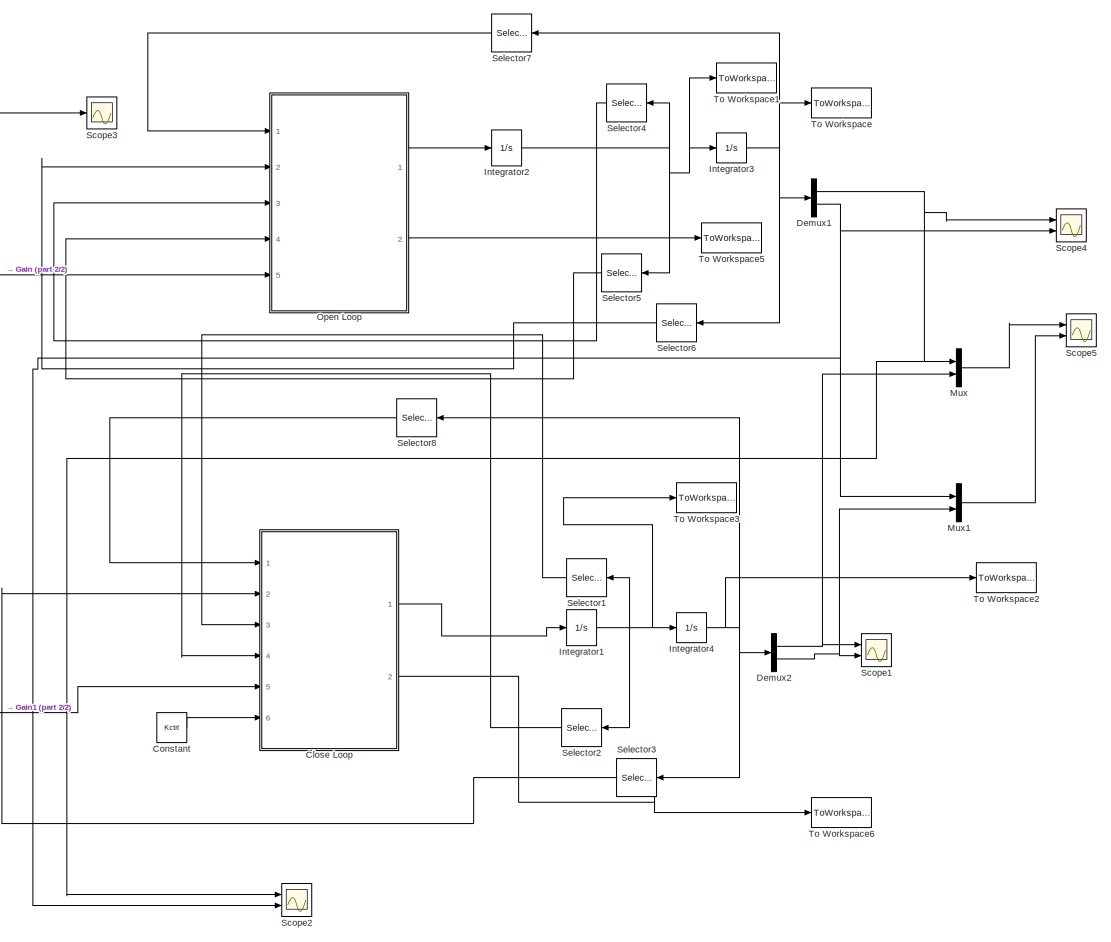
[diagram: root canvas - part 1/2, most of the canvas]
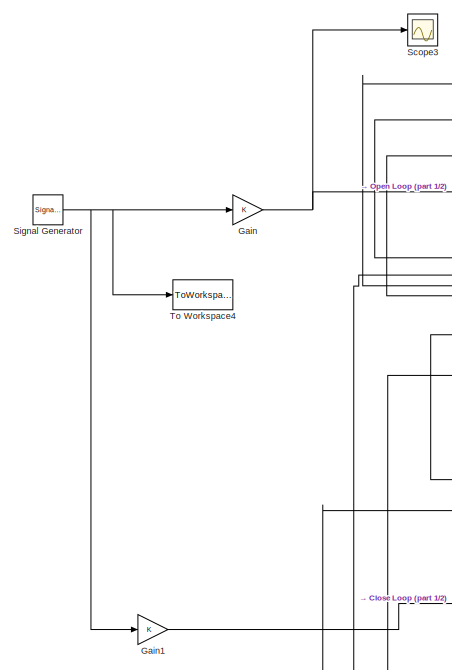
[diagram: root canvas - part 2/2, middle left region]
MODEL slx_be6ae5944928
KIND model
CONFIG AbsTol = auto
CONFIG EnableMultiTasking = off
CONFIG FixedStep = auto
CONFIG InitFcn = init
CONFIG MaxStep = auto
CONFIG MinStep = auto
CONFIG RelTol = 1e-3
CONFIG SampleTimeConstraint = Unconstrained
CONFIG Solver = ode23s
CONFIG SolverName = ode23s
CONFIG StartTime = 0.0
CONFIG StopTime = 1
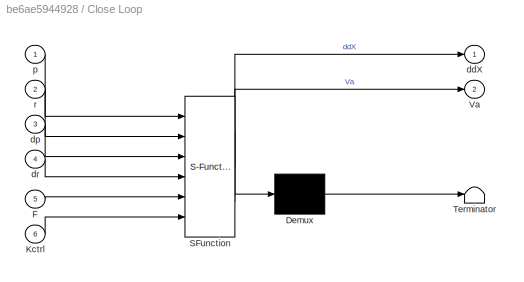
BLOCK [SubSystem] Close Loop
  ErrorFcn = Stateflow.Translate.translate
  PermitHierarchicalResolution = ExplicitOnly
  Ports = [6, 2]
  RequestExecContextInheritance = off
  SFBlockType = MATLAB Function
  TreatAsAtomicUnit = on
  Variant = off
BLOCK [Demux] Close Loop/ Demux 
  Outputs = 1
  Ports = [1, 1]
BLOCK [S-Function] Close Loop/ SFunction 
  EnableBusSupport = on
  FunctionName = sf_sfun
  PortCounts = [6 3]
  Ports = [6, 3]
  SFcnIsStateOwnerBlock = off
  SFunctionDeploymentMode = off
  Tag = Stateflow S-Function Model_1 2
BLOCK [Terminator] Close Loop/ Terminator 
BLOCK [Inport] Close Loop/F
  IconDisplay = Port number
  Port = 5
BLOCK [Inport] Close Loop/Kctrl
  IconDisplay = Port number
  Port = 6
BLOCK [Outport] Close Loop/Va
  IconDisplay = Port number
  Port = 2
BLOCK [Outport] Close Loop/ddX
  IconDisplay = Port number
BLOCK [Inport] Close Loop/dp
  IconDisplay = Port number
  Port = 3
BLOCK [Inport] Close Loop/dr
  IconDisplay = Port number
  Port = 4
BLOCK [Inport] Close Loop/p
  IconDisplay = Port number
BLOCK [Inport] Close Loop/r
  IconDisplay = Port number
  Port = 2
BLOCK [Constant] Constant
  Value = Kctrl
BLOCK [Demux] Demux1
  DisplayOption = bar
  Outputs = 2
  Ports = [1, 2]
BLOCK [Demux] Demux2
  DisplayOption = bar
  Outputs = 2
  Ports = [1, 2]
BLOCK [Gain] Gain
  OutDataTypeStr = Inherit: Inherit via internal rule
  ParamDataTypeStr = Inherit: Inherit via internal rule
  SaturateOnIntegerOverflow = off
BLOCK [Gain] Gain1
  OutDataTypeStr = Inherit: Inherit via internal rule
  ParamDataTypeStr = Inherit: Inherit via internal rule
  SaturateOnIntegerOverflow = off
BLOCK [Integrator] Integrator1
  InitialCondition = [0;0]
  Ports = [1, 1]
BLOCK [Integrator] Integrator2
  InitialCondition = [0;0]
  Ports = [1, 1]
BLOCK [Integrator] Integrator3
  InitialCondition = [0;0]
  Ports = [1, 1]
BLOCK [Integrator] Integrator4
  InitialCondition = [0;0]
  Ports = [1, 1]
BLOCK [Mux] Mux
  DisplayOption = bar
  Inputs = 2
  Ports = [2, 1]
BLOCK [Mux] Mux1
  DisplayOption = bar
  Inputs = 2
  Ports = [2, 1]
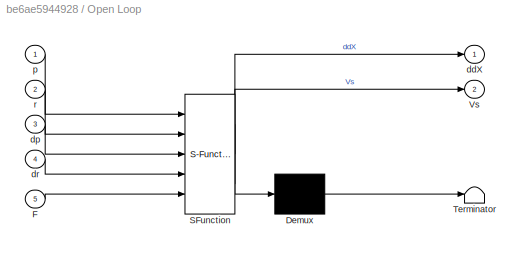
BLOCK [SubSystem] Open Loop
  ErrorFcn = Stateflow.Translate.translate
  PermitHierarchicalResolution = ExplicitOnly
  Ports = [5, 2]
  RequestExecContextInheritance = off
  SFBlockType = MATLAB Function
  TreatAsAtomicUnit = on
  Variant = off
BLOCK [Demux] Open Loop/ Demux 
  Outputs = 1
  Ports = [1, 1]
BLOCK [S-Function] Open Loop/ SFunction 
  EnableBusSupport = on
  FunctionName = sf_sfun
  PortCounts = [5 3]
  Ports = [5, 3]
  SFcnIsStateOwnerBlock = off
  SFunctionDeploymentMode = off
  Tag = Stateflow S-Function Model_1 1
BLOCK [Terminator] Open Loop/ Terminator 
BLOCK [Inport] Open Loop/F
  IconDisplay = Port number
  Port = 5
BLOCK [Outport] Open Loop/Vs
  IconDisplay = Port number
  Port = 2
BLOCK [Outport] Open Loop/ddX
  IconDisplay = Port number
BLOCK [Inport] Open Loop/dp
  IconDisplay = Port number
  Port = 3
BLOCK [Inport] Open Loop/dr
  IconDisplay = Port number
  Port = 4
BLOCK [Inport] Open Loop/p
  IconDisplay = Port number
BLOCK [Inport] Open Loop/r
  IconDisplay = Port number
  Port = 2
BLOCK [Scope] Scope1
  NumInputPorts = 2
  Ports = [2]
  ScopeSpecificationString = Simulink.scopes.TimeScopeBlockCfg('CurrentConfiguration', extmgr.ConfigurationSet(extmgr.Configuration('Core','General UI',true),extmgr.Configuration('Core','Source UI',true),extmgr.Configuration('Sources','WiredSimulink',true,'DataLoggingVariableName','ScopeData1'),extmgr.Configuration('Visuals','Time Domain',true,'SerializedDisplays',{struct('MinYLimReal','-0.000038','MaxYLimReal','0.000038','YL...<+1996ch>
BLOCK [Scope] Scope2
  NumInputPorts = 2
  Ports = [2]
  ScopeSpecificationString = Simulink.scopes.TimeScopeBlockCfg('CurrentConfiguration', extmgr.ConfigurationSet(extmgr.Configuration('Core','General UI',true),extmgr.Configuration('Core','Source UI',true),extmgr.Configuration('Sources','WiredSimulink',true,'DataLoggingVariableName','ScopeData2'),extmgr.Configuration('Visuals','Time Domain',true,'SerializedDisplays',{struct('MinYLimReal','-0.0016','MaxYLimReal','0.00159','YLabe...<+2006ch>
BLOCK [Scope] Scope3
  NumInputPorts = 1
  Ports = [1]
  ScopeSpecificationString = C++SS(StrPVP('SaveName','ScopeData'),StrPVP('LimitDataPoints','on'),StrPVP('DataFormat','Array'),StrPVP('Decimation','1'),StrPVP('BlockParamSampleInput','off'),StrPVP('SaveName','ScopeData3'))
BLOCK [Scope] Scope4
  NumInputPorts = 2
  Ports = [2]
  ScopeSpecificationString = Simulink.scopes.TimeScopeBlockCfg('CurrentConfiguration', extmgr.ConfigurationSet(extmgr.Configuration('Core','General UI',true),extmgr.Configuration('Core','Source UI',true),extmgr.Configuration('Sources','WiredSimulink',true,'DataLoggingVariableName','ScopeData4'),extmgr.Configuration('Visuals','Time Domain',true,'SerializedDisplays',{struct('MinYLimReal','-0.00019','MaxYLimReal','0.00019','YLab...<+2015ch>
BLOCK [Scope] Scope5
  NumInputPorts = 2
  Ports = [2]
  ScopeSpecificationString = Simulink.scopes.TimeScopeBlockCfg('CurrentConfiguration', extmgr.ConfigurationSet(extmgr.Configuration('Core','General UI',true),extmgr.Configuration('Core','Source UI',true),extmgr.Configuration('Sources','WiredSimulink',true),extmgr.Configuration('Visuals','Time Domain',true,'SerializedDisplays',{struct('MinYLimReal','-0.00016','MaxYLimReal','0.00016','YLabelReal','','MinYLimMag','0.00000','MaxY...<+1978ch>
BLOCK [Selector] Selector1
  IndexOptions = Index vector (dialog)
  Indices = [1]
  InputPortWidth = 2
  OutputSizes = 1
  Ports = [1, 1]
BLOCK [Selector] Selector2
  IndexOptions = Index vector (dialog)
  Indices = [2]
  InputPortWidth = 2
  OutputSizes = 1
  Ports = [1, 1]
BLOCK [Selector] Selector3
  IndexOptions = Index vector (dialog)
  Indices = [2]
  InputPortWidth = 2
  OutputSizes = 1
  Ports = [1, 1]
BLOCK [Selector] Selector4
  IndexOptions = Index vector (dialog)
  Indices = [1]
  InputPortWidth = 2
  OutputSizes = 1
  Ports = [1, 1]
BLOCK [Selector] Selector5
  IndexOptions = Index vector (dialog)
  Indices = [2]
  InputPortWidth = 2
  OutputSizes = 1
  Ports = [1, 1]
BLOCK [Selector] Selector6
  IndexOptions = Index vector (dialog)
  Indices = [2]
  InputPortWidth = 2
  OutputSizes = 1
  Ports = [1, 1]
BLOCK [Selector] Selector7
  IndexOptions = Index vector (dialog)
  Indices = [1]
  InputPortWidth = 2
  OutputSizes = 1
  Ports = [1, 1]
BLOCK [Selector] Selector8
  IndexOptions = Index vector (dialog)
  Indices = [1]
  InputPortWidth = 2
  OutputSizes = 1
  Ports = [1, 1]
BLOCK [SignalGenerator] Signal Generator
  Amplitude = 10
  Frequency = 10
  Ports = [0, 1]
  WaveForm = square
BLOCK [ToWorkspace] To Workspace
  FixptAsFi = on
  MaxDataPoints = inf
  Ports = [1]
  SampleTime = -1
  Save2DSignal = 3-D array (concatenate along third dimension)
  SaveFormat = Structure With Time
  VariableName = X
BLOCK [ToWorkspace] To Workspace1
  FixptAsFi = on
  MaxDataPoints = inf
  Ports = [1]
  SampleTime = -1
  Save2DSignal = 3-D array (concatenate along third dimension)
  SaveFormat = Structure With Time
  VariableName = Xdot
BLOCK [ToWorkspace] To Workspace2
  FixptAsFi = on
  MaxDataPoints = inf
  Ports = [1]
  SampleTime = -1
  Save2DSignal = 3-D array (concatenate along third dimension)
  SaveFormat = Structure With Time
  VariableName = Xc
BLOCK [ToWorkspace] To Workspace3
  FixptAsFi = on
  MaxDataPoints = inf
  Ports = [1]
  SampleTime = -1
  Save2DSignal = 3-D array (concatenate along third dimension)
  SaveFormat = Structure With Time
  VariableName = Xdotc
BLOCK [ToWorkspace] To Workspace4
  FixptAsFi = on
  MaxDataPoints = inf
  Ports = [1]
  SampleTime = -1
  Save2DSignal = 3-D array (concatenate along third dimension)
  SaveFormat = Structure With Time
  VariableName = Input
BLOCK [ToWorkspace] To Workspace5
  FixptAsFi = on
  MaxDataPoints = inf
  Ports = [1]
  SampleTime = -1
  Save2DSignal = 3-D array (concatenate along third dimension)
  SaveFormat = Structure With Time
  VariableName = Vs
BLOCK [ToWorkspace] To Workspace6
  FixptAsFi = on
  MaxDataPoints = inf
  Ports = [1]
  SampleTime = -1
  Save2DSignal = 3-D array (concatenate along third dimension)
  SaveFormat = Structure With Time
  VariableName = Va
LINE Close Loop:1 -> Integrator1:1
LINE Close Loop:2 -> To Workspace6:1
LINE Constant:1 -> Close Loop:6
NET Demux1:1 -> Mux:1, Scope2:1, Scope4:1
NET Demux1:2 -> Mux1:1, Scope2:2, Scope4:2
NET Demux2:1 -> Mux:2, Scope1:1
NET Demux2:2 -> Mux1:2, Scope1:2
LINE Gain1:1 -> Close Loop:5
NET Gain:1 -> Open Loop:5, Scope3:1
NET Integrator1:1 -> Integrator4:1, Selector1:1, Selector2:1, To Workspace3:1
NET Integrator2:1 -> Integrator3:1, Selector4:1, Selector5:1, To Workspace1:1
NET Integrator3:1 -> Demux1:1, Selector6:1, Selector7:1, To Workspace:1
NET Integrator4:1 -> Demux2:1, Selector3:1, Selector8:1, To Workspace2:1
LINE Mux1:1 -> Scope5:2
LINE Mux:1 -> Scope5:1
LINE Open Loop:1 -> Integrator2:1
LINE Open Loop:2 -> To Workspace5:1
LINE Selector1:1 -> Close Loop:3
LINE Selector2:1 -> Close Loop:4
LINE Selector3:1 -> Close Loop:2
LINE Selector4:1 -> Open Loop:3
LINE Selector5:1 -> Open Loop:4
LINE Selector6:1 -> Open Loop:2
LINE Selector7:1 -> Open Loop:1
LINE Selector8:1 -> Close Loop:1
NET Signal Generator:1 -> Gain1:1, Gain:1, To Workspace4:1
note: NET lines group one-source signal fan-out (src -> all destinations, sorted); 1:1 wires keep LINE
CHART Open Loop states=1 transitions=1
  STATE_LABEL 'eML_blk_kernel()'
  STATE_LABEL 'SCRIPT:\nfunction [ddX,Vs] = fcn(p,r,dp,dr,F)\nM=[0.01,0;0,.46756];\nK=[.121e9,-.0378e9;-.0378e9,4.37596e9];\nQ=[0;1.444];\nCp=zeros(2);\nC1=[-3.7268e8,-1.7284e8];\nX=[p;r];\ndX=[dp;dr];\nF=F.*eye(2);\nddX=pinv(M)*((F*Q)-(K*X)-(Cp*dX));\nVs=C1*X;\n\n'
CHART Close Loop states=1 transitions=1
  STATE_LABEL 'eML_blk_kernel()'
  STATE_LABEL 'SCRIPT:\nfunction [ddX,Va] = fcn(p,r,dp,dr,F,Kctrl)\n% global Kctrl\n% K=system.K;\n% Q=system.Q;\n% Cp=system.Cp;\n% global M K Q \n%#codegen\nM=[0.01,0;0,.46756];\nK=[.121e9,-.0378e9;-.0378e9,4.37596e9];\nQ=[0;1.444];\n\n\n% Cp=1.*[3.67348e18,-9.9523e18;3.67348e18,-9.95227e18];\n% Cp=[5.41687,-2.487;2.5122,-1.153].*1e2;\n% Gain=[3.7268,1.7284].*1e3;\nX=[p;r];\ndX=[dp;dr];\nF=[F,0;0,F];\nCp=[5.416877014077774  -2.4...<+187ch>'
